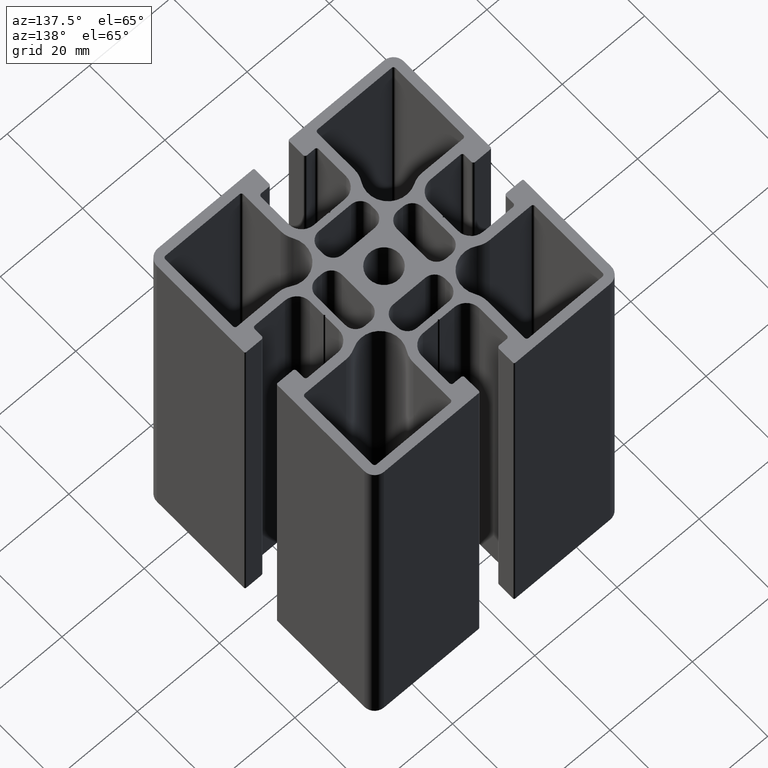
[diagram: clean part render]
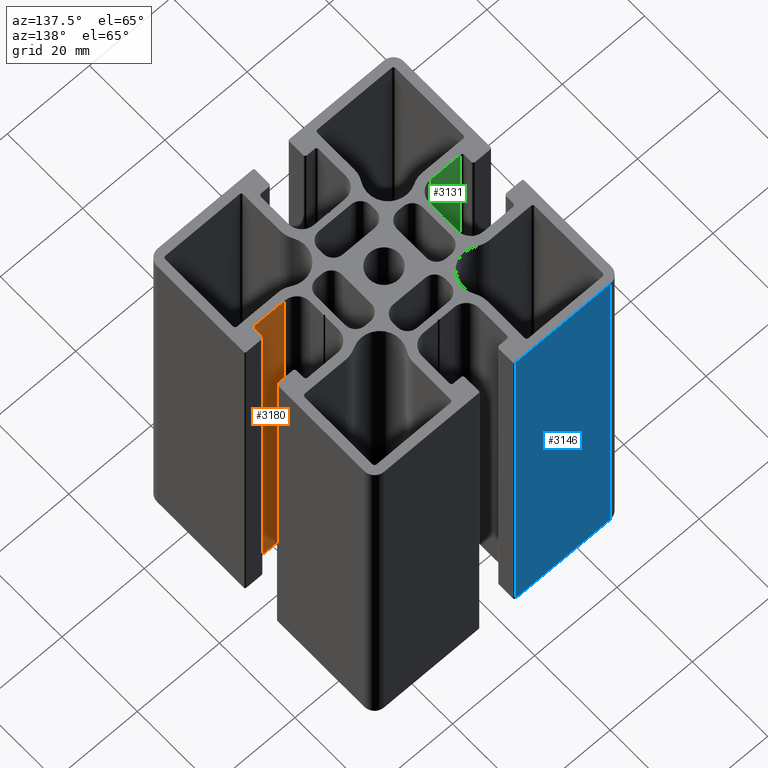
[diagram: same view with three faces highlighted in distinct colors, each labeled with its STEP entity id]
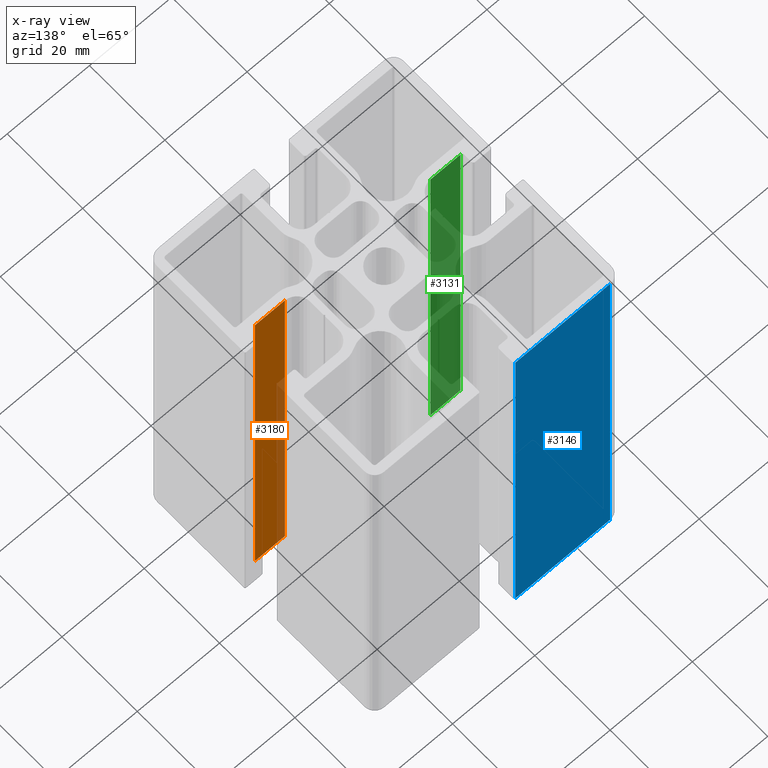
[diagram: x-ray of the same camera — body ghosted, the three highlighted faces saturated]
A machine part, auxiliary view with three faces highlighted in distinct colors.
The next image is the same camera in x-ray (body ghosted, the three faces saturated) — at least one of them is partly hidden behind the body in this view.
Their STEP definitions:

[orange] entity #3180 — the highlighted planar face has unit normal (0, 1, 0).
#405=FACE_OUTER_BOUND('',#565,.T.);
#565=EDGE_LOOP('',(#2576,#2577,#2578,#2579));
#883=LINE('',#5300,#1199);
#884=LINE('',#5303,#1200);
#885=LINE('',#5305,#1201);
#886=LINE('',#5306,#1202);
#1199=VECTOR('',#4353,100.);
#1200=VECTOR('',#4356,7.30000000000004);
#1201=VECTOR('',#4357,7.30000000000004);
#1202=VECTOR('',#4358,100.);
#1514=VERTEX_POINT('',#5296);
#1515=VERTEX_POINT('',#5298);
#1516=VERTEX_POINT('',#5302);
#1517=VERTEX_POINT('',#5304);
#1967=EDGE_CURVE('',#1514,#1515,#883,.T.);
#1968=EDGE_CURVE('',#1514,#1516,#884,.T.);
#1969=EDGE_CURVE('',#1517,#1515,#885,.T.);
#1970=EDGE_CURVE('',#1516,#1517,#886,.T.);
#2576=ORIENTED_EDGE('',*,*,#1968,.F.);
#2577=ORIENTED_EDGE('',*,*,#1967,.T.);
#2578=ORIENTED_EDGE('',*,*,#1969,.F.);
#2579=ORIENTED_EDGE('',*,*,#1970,.F.);
#3029=PLANE('',#3479);
#3180=ADVANCED_FACE('',(#405),#3029,.T.);
#3479=AXIS2_PLACEMENT_3D('',#5301,#4354,#4355);
#4353=DIRECTION('',(0.,0.,1.));
#4354=DIRECTION('center_axis',(1.94669242673999E-14,1.,0.));
#4355=DIRECTION('ref_axis',(-1.,1.94511073914327E-14,0.));
#4356=DIRECTION('',(1.,-1.94669242673999E-14,0.));
#4357=DIRECTION('',(-1.,1.94669242673999E-14,0.));
#4358=DIRECTION('',(0.,0.,1.));
#5296=CARTESIAN_POINT('',(17.7,-6.9999999999999,0.));
#5298=CARTESIAN_POINT('',(17.7,-6.9999999999999,100.));
#5300=CARTESIAN_POINT('',(17.7,-6.9999999999999,0.));
#5301=CARTESIAN_POINT('Origin',(25.,-7.00000000000005,0.));
#5302=CARTESIAN_POINT('',(25.,-7.00000000000005,0.));
#5303=CARTESIAN_POINT('',(17.7,-6.9999999999999,0.));
#5304=CARTESIAN_POINT('',(25.,-7.00000000000005,100.));
#5305=CARTESIAN_POINT('',(17.7,-6.9999999999999,100.));
#5306=CARTESIAN_POINT('',(25.,-7.00000000000005,0.));

[blue] entity #3146 — the highlighted planar face has unit normal (0, 1, 0).
#371=FACE_OUTER_BOUND('',#531,.T.);
#531=EDGE_LOOP('',(#2440,#2441,#2442,#2443));
#809=LINE('',#5096,#1125);
#810=LINE('',#5099,#1126);
#811=LINE('',#5101,#1127);
#812=LINE('',#5102,#1128);
#1125=VECTOR('',#4155,100.);
#1126=VECTOR('',#4158,23.0499999999999);
#1127=VECTOR('',#4159,23.0499999999999);
#1128=VECTOR('',#4160,100.);
#1446=VERTEX_POINT('',#5092);
#1447=VERTEX_POINT('',#5094);
#1448=VERTEX_POINT('',#5098);
#1449=VERTEX_POINT('',#5100);
#1865=EDGE_CURVE('',#1446,#1447,#809,.T.);
#1866=EDGE_CURVE('',#1446,#1448,#810,.T.);
#1867=EDGE_CURVE('',#1449,#1447,#811,.T.);
#1868=EDGE_CURVE('',#1448,#1449,#812,.T.);
#2440=ORIENTED_EDGE('',*,*,#1866,.F.);
#2441=ORIENTED_EDGE('',*,*,#1865,.T.);
#2442=ORIENTED_EDGE('',*,*,#1867,.F.);
#2443=ORIENTED_EDGE('',*,*,#1868,.F.);
#3009=PLANE('',#3417);
#3146=ADVANCED_FACE('',(#371),#3009,.T.);
#3417=AXIS2_PLACEMENT_3D('',#5097,#4156,#4157);
#4155=DIRECTION('',(0.,0.,1.));
#4156=DIRECTION('center_axis',(2.69728804247327E-15,1.,0.));
#4157=DIRECTION('ref_axis',(-1.,2.8421709430404E-15,0.));
#4158=DIRECTION('',(1.,-2.69728804247327E-15,0.));
#4159=DIRECTION('',(-1.,2.69728804247327E-15,0.));
#4160=DIRECTION('',(0.,0.,1.));
#5092=CARTESIAN_POINT('',(-27.5,30.,0.));
#5094=CARTESIAN_POINT('',(-27.5,30.,100.));
#5096=CARTESIAN_POINT('',(-27.5,30.,0.));
#5097=CARTESIAN_POINT('Origin',(-4.45000000000004,30.,0.));
#5098=CARTESIAN_POINT('',(-4.45000000000004,30.,0.));
#5099=CARTESIAN_POINT('',(-27.5,30.,0.));
#5100=CARTESIAN_POINT('',(-4.45000000000004,30.,100.));
#5101=CARTESIAN_POINT('',(-27.5,30.,100.));
#5102=CARTESIAN_POINT('',(-4.45000000000004,30.,0.));

[green] entity #3131 — the highlighted planar face has unit normal (0, 1, 0).
#356=FACE_OUTER_BOUND('',#516,.T.);
#516=EDGE_LOOP('',(#2380,#2381,#2382,#2383));
#776=LINE('',#5006,#1092);
#777=LINE('',#5009,#1093);
#778=LINE('',#5011,#1094);
#779=LINE('',#5012,#1095);
#1092=VECTOR('',#4068,100.);
#1093=VECTOR('',#4071,7.30000000000001);
#1094=VECTOR('',#4072,7.30000000000001);
#1095=VECTOR('',#4073,100.);
#1416=VERTEX_POINT('',#5002);
#1417=VERTEX_POINT('',#5004);
#1418=VERTEX_POINT('',#5008);
#1419=VERTEX_POINT('',#5010);
#1820=EDGE_CURVE('',#1416,#1417,#776,.T.);
#1821=EDGE_CURVE('',#1416,#1418,#777,.T.);
#1822=EDGE_CURVE('',#1419,#1417,#778,.T.);
#1823=EDGE_CURVE('',#1418,#1419,#779,.T.);
#2380=ORIENTED_EDGE('',*,*,#1821,.F.);
#2381=ORIENTED_EDGE('',*,*,#1820,.T.);
#2382=ORIENTED_EDGE('',*,*,#1822,.F.);
#2383=ORIENTED_EDGE('',*,*,#1823,.F.);
#3000=PLANE('',#3390);
#3131=ADVANCED_FACE('',(#356),#3000,.T.);
#3390=AXIS2_PLACEMENT_3D('',#5007,#4069,#4070);
#4068=DIRECTION('',(0.,0.,1.));
#4069=DIRECTION('center_axis',(8.51677936698749E-15,1.,0.));
#4070=DIRECTION('ref_axis',(-1.,8.5265128291212E-15,0.));
#4071=DIRECTION('',(1.,-8.51677936698749E-15,0.));
#4072=DIRECTION('',(-1.,8.51677936698749E-15,0.));
#4073=DIRECTION('',(0.,0.,1.));
#5002=CARTESIAN_POINT('',(-25.,-7.00000000000012,0.));
#5004=CARTESIAN_POINT('',(-25.,-7.00000000000012,100.));
#5006=CARTESIAN_POINT('',(-25.,-7.00000000000012,0.));
#5007=CARTESIAN_POINT('Origin',(-17.7,-7.00000000000018,0.));
#5008=CARTESIAN_POINT('',(-17.7,-7.00000000000018,0.));
#5009=CARTESIAN_POINT('',(-25.,-7.00000000000012,0.));
#5010=CARTESIAN_POINT('',(-17.7,-7.00000000000018,100.));
#5011=CARTESIAN_POINT('',(-25.,-7.00000000000012,100.));
#5012=CARTESIAN_POINT('',(-17.7,-7.00000000000018,0.));